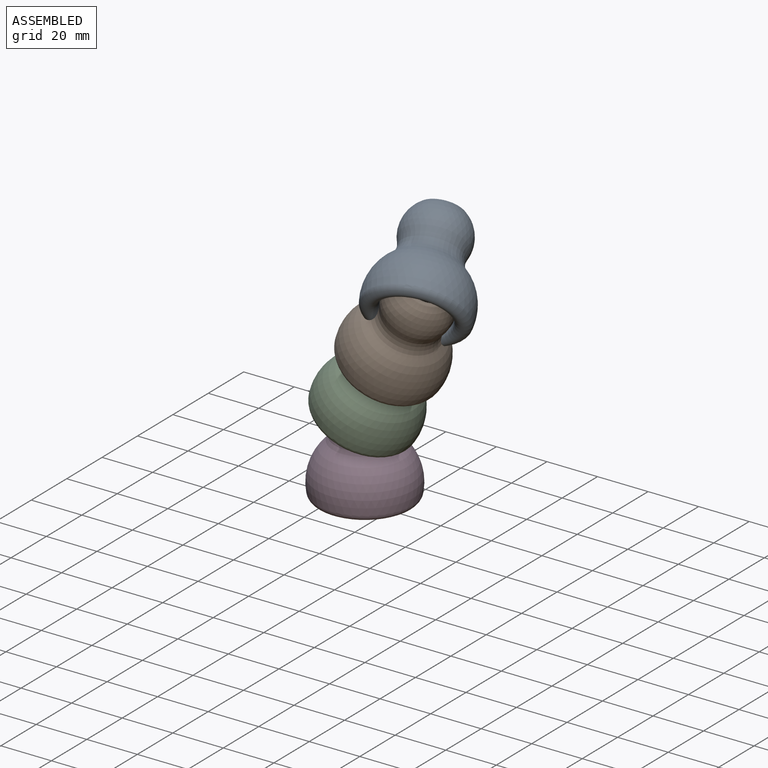
[diagram: assembled view]
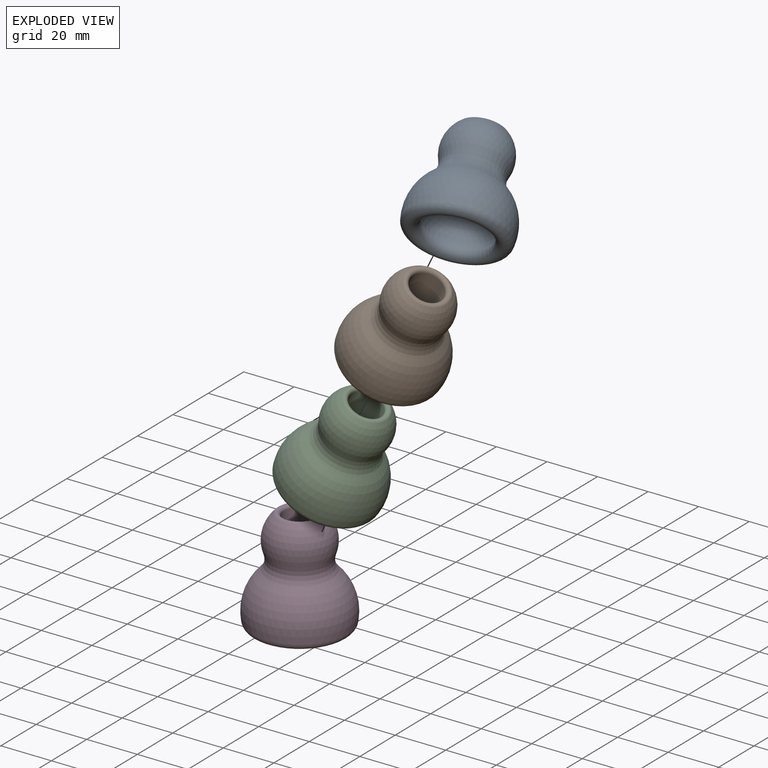
[diagram: exploded view]
GUIDED TOUR — MATED ASSEMBLY (Onshape document 17fda7f48e0e4979a549ba01, AutoMate assembly 17fda7f48e0e4979a549ba01_2a4e50c77bb997f17131bcc0_6e50e397506980c512785028_default)

This assembly has 4 components, labeled P0..P3 below (a component is one placed occurrence of a part; the same part can appear more than once), held together by 3 mates. A mate is a constraint between two components; its type names the relative motion it leaves free:
  BALL — leaves all rotation about the listed point free (a ball joint).
Axis/direction vectors are unit vectors and 'through' points are millimeter coordinates, both in the assembly's world frame.

MATES
  1. BALL "Ball 2": P2 <-> P1, direction (0.446, -0.058, 0.893) through (12.33, -1.61, 50.09) mm
  2. BALL "Ball 1": P3 <-> P2, direction (0.000, 0.000, 1.000) through (0.00, 0.00, 25.40) mm
  3. BALL "Ball 3": P1 <-> P0, direction (0.491, -0.141, 0.860) through (24.80, -5.21, 71.93) mm

ASSEMBLY ORDER
  1. P1 — the base component [order heuristic]
  2. P0 [order heuristic]
  3. P2 [order heuristic]
  4. P3 [order heuristic]
Order-tag legend:
  [order heuristic] — this assembly is geometrically interlocked (no collision-free removal order exists), so components are listed in mate-graph order; insertion feasibility is not verified.

Of the 4 components, 4 carry the full construction recipe — the FeatureScript program that regenerates the part's solid from scratch; the rest are supplied as boundary geometry only.
Each toured component is shown spotlighted twice — in the assembled view, then in the exploded view, where a leader line traces a displaced component back to its assembled socket (saturated green if recipe-attached, orange if geometry-only; every other component desaturated gray) — followed by its recipe or geometry summary and the mates that hold it.
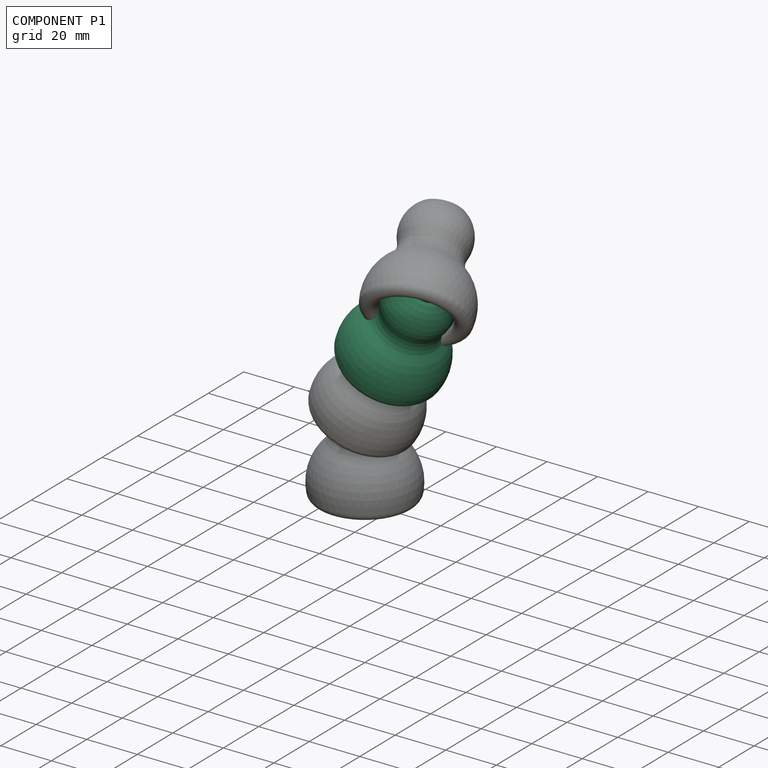
[diagram: component P1 — assembled]
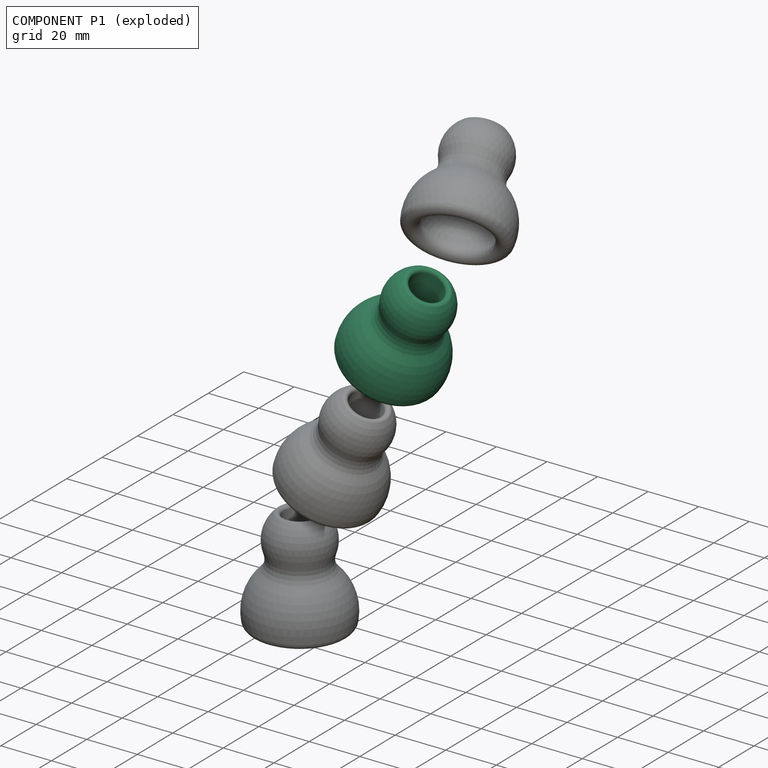
[diagram: component P1 — exploded]
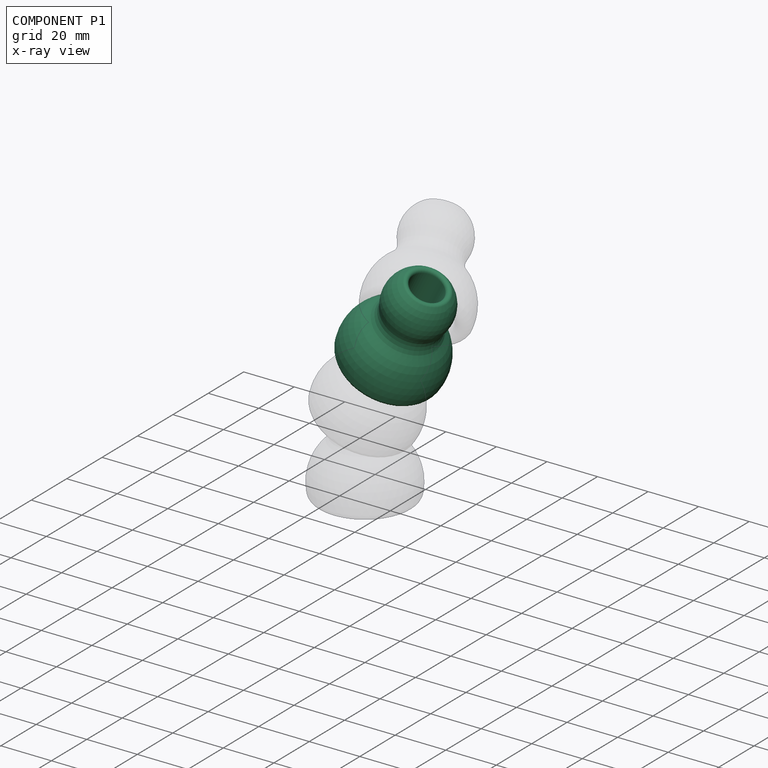
[diagram: component P1 — x-ray view]
COMPONENT P1 — same part as P0 (CADFS 00821202); its construction recipe is shown at P0.
Held by: BALL mate "Ball 2" to P2; BALL mate "Ball 3" to P0.
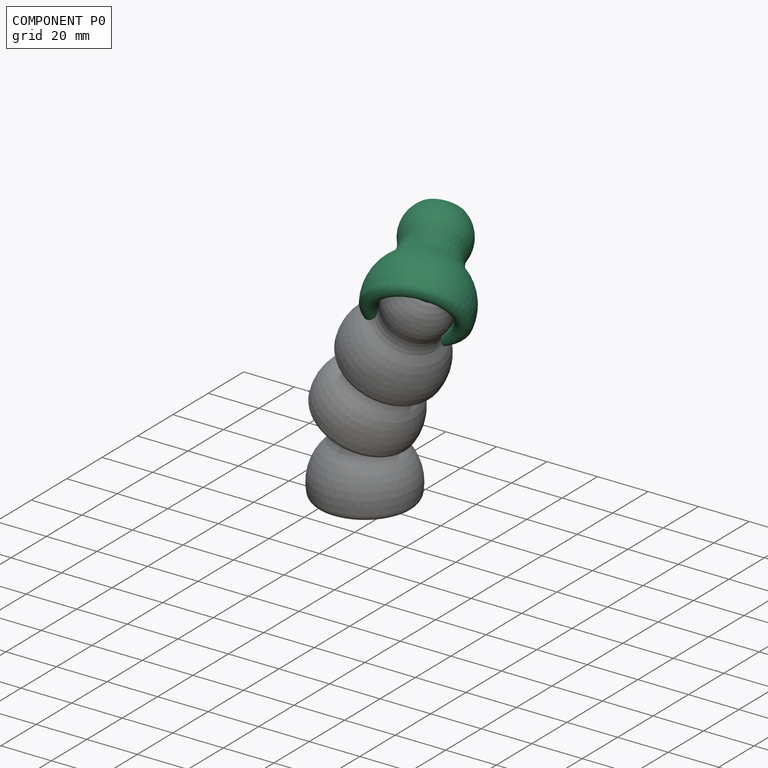
[diagram: component P0 — assembled]
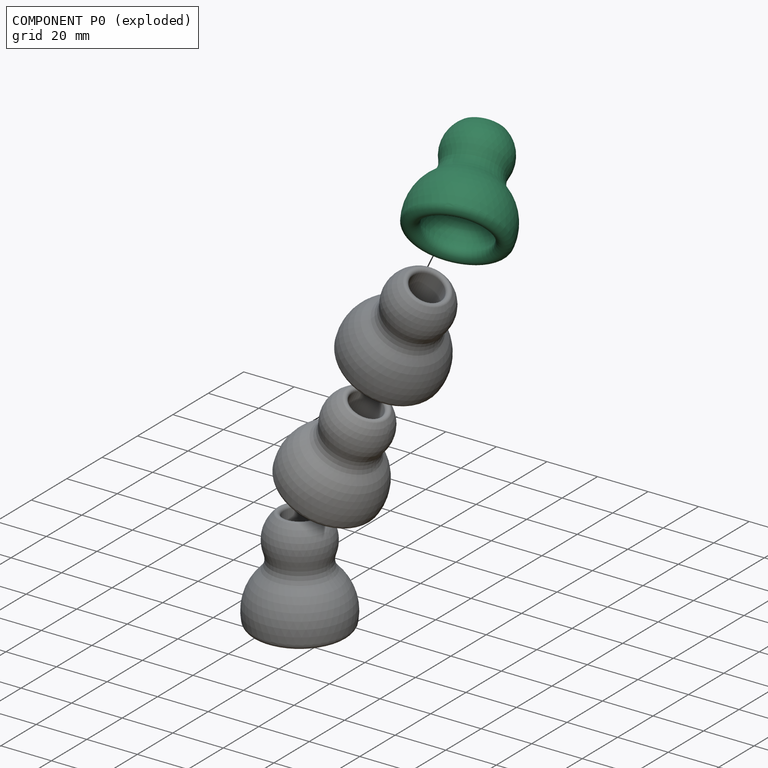
[diagram: component P0 — exploded]
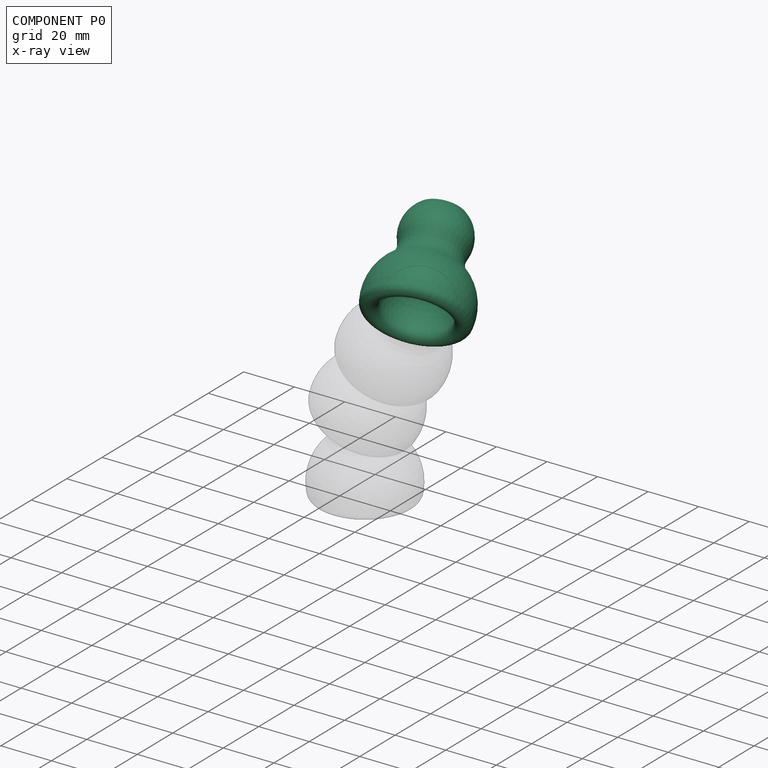
[diagram: component P0 — x-ray view]
COMPONENT P0 — recipe-attached (CADFS 00821202, mesh-verified: the recipe's output STEP matches this component's geometry to below the mesh-comparison resolution (tessellation chordal tolerance ~0.102 mm)).
Held by: BALL mate "Ball 3" to P1.
Construction recipe (FeatureScript — the CAD program that rebuilds this solid; sketch coordinates are in the units given by the * unit suffixes, e.g. mm):

FeatureScript 1511;
import(path : "onshape/std/geometry.fs", version : "1511.0");
import(path : "onshape/std/common.fs", version : "1511.0");
const mm = millimeter;
const VERTEX = EntityType.VERTEX;
const EDGE = EntityType.EDGE;
const FACE = EntityType.FACE;
const BODY = EntityType.BODY;
function v(x, y){return vector(x, y);}
function OD(order){return orderDisambiguation(order);}
function OSD(set){return originalSetDisambiguation(set);}
function TD(topology){return topologyDisambiguation(topology);}
function TDD(query){return trueDependencyDisambiguation(query);}
function sQuery(a, b, c) {return sketchEntityQuery(a, b, c);}

annotation { "Feature Type Name" : "Feature", "Feature Type Description" : "" }
export const myFeature = defineFeature(function(context is Context, id is Id, definition is map)
    precondition{}
    {
        {
            var Q0;
            Q0=qCreatedBy(makeId("Front.planeOp"),FACE);
            var sketch = newSketch(context, id + "F0", { "sketchPlane" : qUnion([Q0])});
            skLineSegment(sketch, "E0", {"start": v(0, 59.8) * mm, "end": v(0, -59.61) * mm, "construction": true});
            skArc(sketch, "E1", {"start": v(12.76, -2.25) * mm, "mid": v(9.92, 8.33) * mm, "end": v(0, 12.95) * mm});
            skArc(sketch, "E2", {"start": v(0, 12.7) * mm, "mid": v(12.7, 25.4) * mm, "end": v(0, 38.1) * mm});
            skArc(sketch, "E3", {"start": v(19.01, -3.35) * mm, "mid": v(14.79, 12.4) * mm, "end": v(0, 19.3) * mm});
            skLineSegment(sketch, "E4", {"start": v(0, 38.1) * mm, "end": v(0, 12.95) * mm});
            skArc(sketch, "E5", {"start": v(12.76, -2.25) * mm, "mid": v(15.33, -5.93) * mm, "end": v(19.01, -3.35) * mm});
            skArc(sketch, "E6", {"start": v(11.84, 20.8) * mm, "mid": v(11.56, 17.14) * mm, "end": v(13.36, 13.93) * mm});
            skLineSegment(sketch, "E7", {"start": v(0, 0) * mm, "end": v(15.88, -2.8) * mm, "construction": true});
            skSolve(sketch);
        }
        {
            var Q0;
            {var subQ0=sQuery(id+"F0.wireOp",EDGE,"E2");var subQ1=makeQuery(id+"F0.imprint","INTERSECT",VERTEX,{"derivedFrom":[subQ0,sQuery(id+"F0.wireOp",EDGE,"E6")]});Q0=makeQuery(id+"F0.imprint","IMPRINT",FACE,{"disambiguationData":[TD([[makeQuery(id+"F0.imprint","IMPRINT",EDGE,{"disambiguationData":[TD([[subQ1,1.0]])],"derivedFrom":subQ0}),1.0]])]});}
            var Q1;
            {var subQ6=sQuery(id+"F0.wireOp",EDGE,"E5");Q1=makeQuery(id+"F0.imprint","IMPRINT",FACE,{"disambiguationData":[TD([[makeQuery(id+"F0.imprint","IMPRINT",EDGE,{"derivedFrom":subQ6}),1.0]])]});}
            var Q2;
            {var subQ0=sQuery(id+"F0.wireOp",EDGE,"E4");var subQ1=sQuery(id+"F0.wireOp",EDGE,"E1");var subQ2=makeQuery(id+"F0.imprint","INTERSECT",VERTEX,{"derivedFrom":[subQ1,subQ0]});Q2=makeQuery(id+"F0.imprint","IMPRINT",FACE,{"disambiguationData":[TD([[makeQuery(id+"F0.imprint","IMPRINT",EDGE,{"disambiguationData":[TD([[subQ2,1.0]])],"derivedFrom":subQ1}),-1.0]])]});}
            var Q3;
            {var subQ0=sQuery(id+"F0.wireOp",EDGE,"E6");Q3=makeQuery(id+"F0.imprint","IMPRINT",FACE,{"disambiguationData":[TD([[makeQuery(id+"F0.imprint","IMPRINT",EDGE,{"derivedFrom":subQ0}),-1.0]])]});}
            var Q4;
            Q4=sQuery(id+"F0.wireOp",EDGE,"E0");
            revolve(context, id + "F1", {"surfaceOperationType" : NewSurfaceOperationType.NEW, "entities" : qUnion([Q0, Q1, Q2, Q3]), "axis" : qUnion([Q4]), "revolveType" : RevolveType.FULL});
        }
        {
            var Q0;
            Q0=qCreatedBy(makeId("Top.planeOp"),FACE);
            var sketch = newSketch(context, id + "F2", { "sketchPlane" : qUnion([Q0])});
            skCircle(sketch, "E8", {"center": v(0, 0) * mm, "radius": 6.35 * mm});
            skSolve(sketch);
        }
        {
            var Q0;
            Q0=makeQuery(id+"F2.imprint","IMPRINT",FACE,{"disambiguationData":[TD([[makeQuery(id+"F2.imprint","IMPRINT",EDGE,{"derivedFrom":sQuery(id+"F2.wireOp",EDGE,"E8")}),1.0]])]});
            extrude(context, id + "F3", {"entities" : qUnion([Q0]), "operationType" : NewBodyOperationType.REMOVE, "endBound" : BoundingType.THROUGH_ALL, "depth" : 25.4 * mm, "offsetDistance" : 25.4 * mm});
        }
        {
            var Q0;
            Q0=makeQuery(id+"F3.boolean.opBoolean","INTERSECT",EDGE,{"derivedFrom":[makeQuery(id+"F1.opRevolve","SWEPT_FACE",FACE,{"disambiguationData":[OSD([sQuery(id+"F0.wireOp",EDGE,"E2")])]}),makeQuery(id+"F3.opExtrude","SWEPT_FACE",FACE,{"disambiguationData":[OSD([sQuery(id+"F2.wireOp",EDGE,"E8")])]})]});
            var Q1;
            Q1=makeQuery(id+"F3.boolean.opBoolean","INTERSECT",EDGE,{"derivedFrom":[makeQuery(id+"F1.opRevolve","SWEPT_FACE",FACE,{"disambiguationData":[OSD([sQuery(id+"F0.wireOp",EDGE,"E1")])]}),makeQuery(id+"F3.opExtrude","SWEPT_FACE",FACE,{"disambiguationData":[OSD([sQuery(id+"F2.wireOp",EDGE,"E8")])]})]});
            fillet(context, id + "F4", {"entities" : qUnion([Q0, Q1]), "radius" : 1.27 * mm, "tangentPropagation" : true, "allowEdgeOverflow" : false});
        }
    });
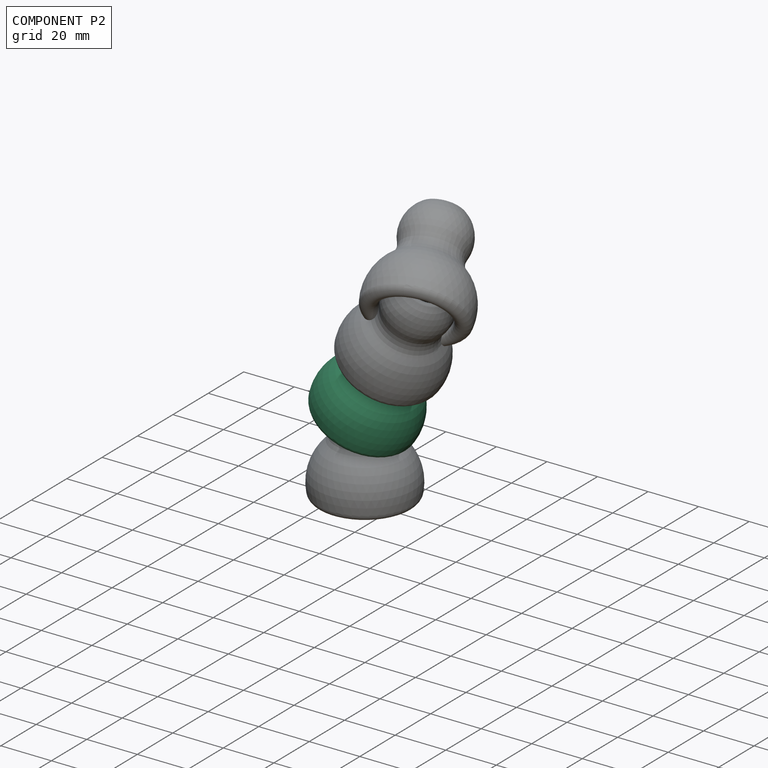
[diagram: component P2 — assembled]
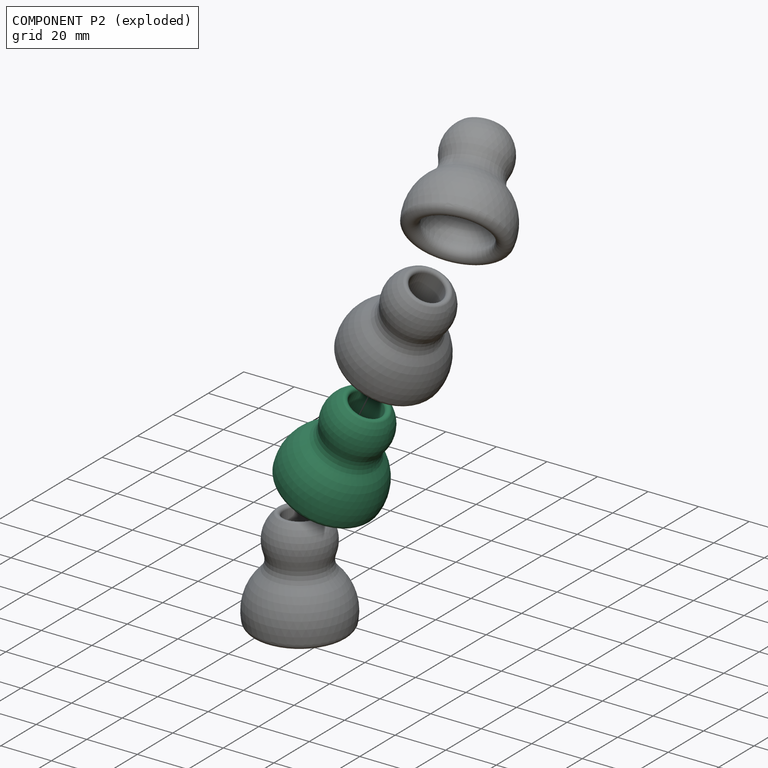
[diagram: component P2 — exploded]
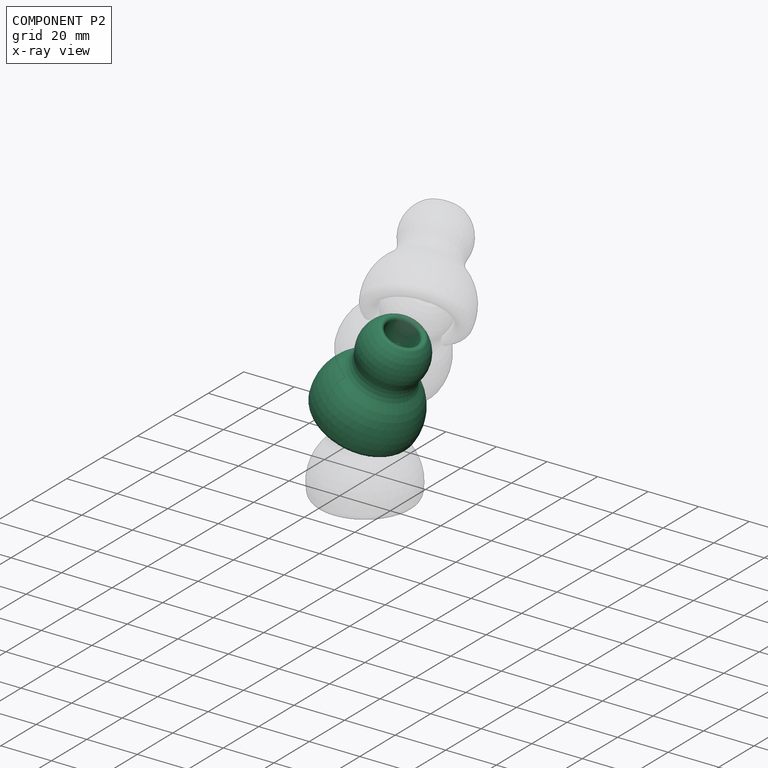
[diagram: component P2 — x-ray view]
COMPONENT P2 — same part as P0 (CADFS 00821202); its construction recipe is shown at P0.
Held by: BALL mate "Ball 2" to P1; BALL mate "Ball 1" to P3.
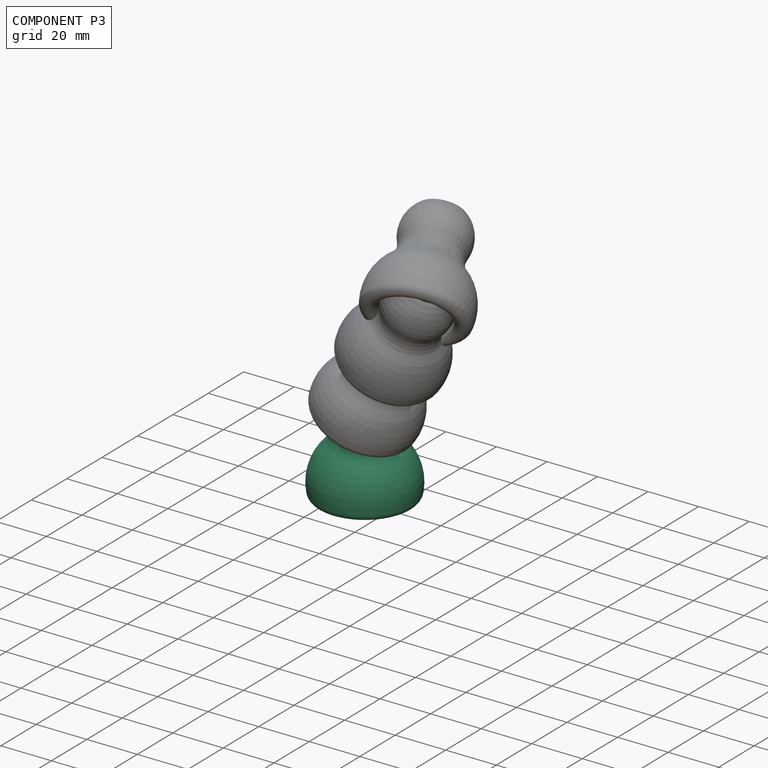
[diagram: component P3 — assembled]
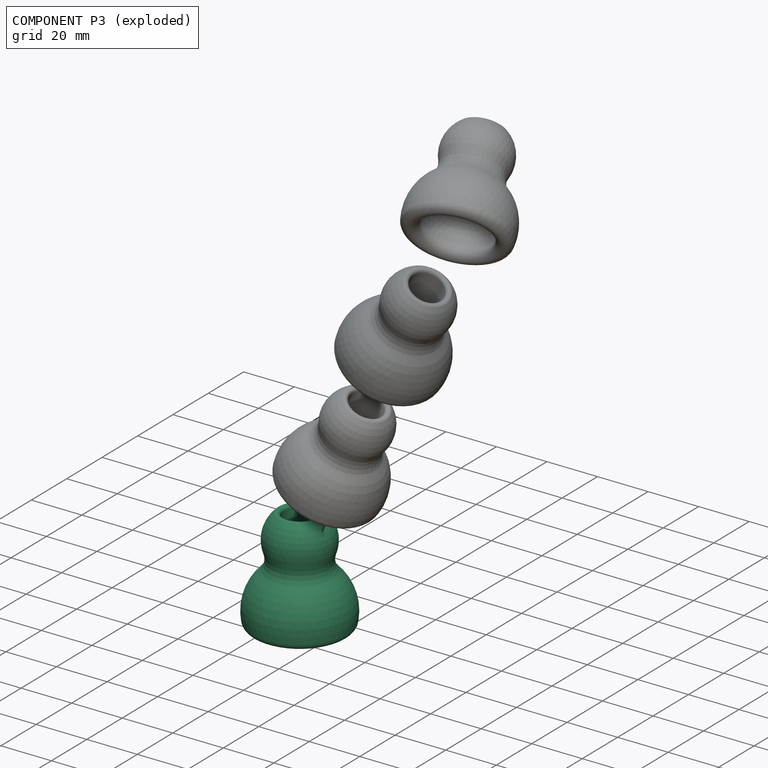
[diagram: component P3 — exploded]
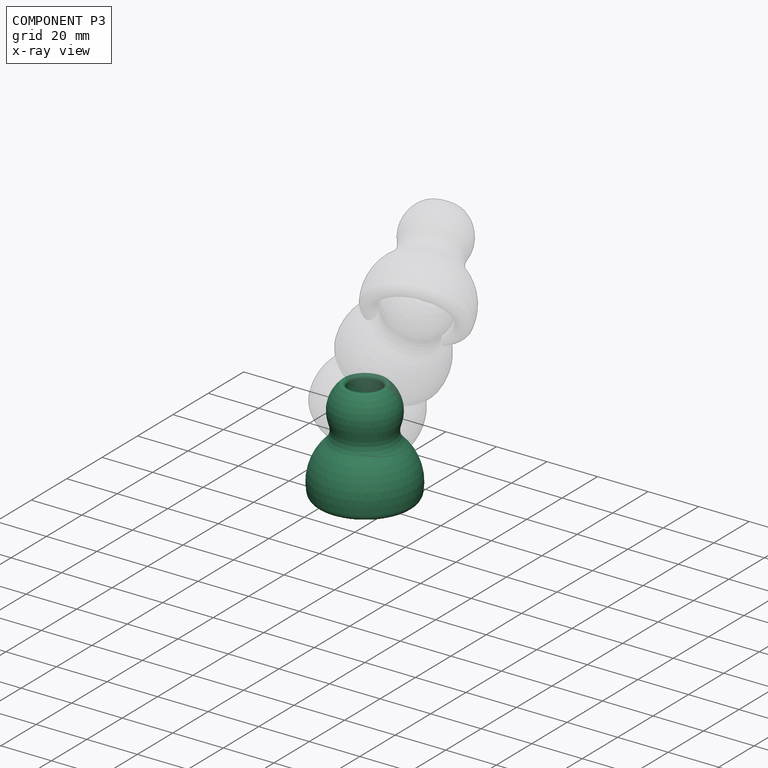
[diagram: component P3 — x-ray view]
COMPONENT P3 — same part as P0 (CADFS 00821202); its construction recipe is shown at P0.
Held by: BALL mate "Ball 1" to P2.
PROVENANCE & LICENSES
Assembly (occurrences, transforms, mates, per-part STEP geometry): AutoMate dataset, Zenodo record 7776208, CC0.
Construction recipes: CADFS (HuggingFace VladPyatov/CADFS, CC-BY-4.0, layered over the ABC dataset), FeatureScript reconstruction programs keyed by ABC model id.
Join: ABC meta listings map ABC model id -> Onshape documentId; within a shared document, parts are matched by geometric signature (bounding-box dims + volume at 0.1% relative tolerance, exact B-rep face/solid counts).
Verification: 4 of this assembly's 4 components carry a recipe attachment, and every attachment is mesh-verified: the CADFS STEP and the AutoMate member STEP were compared as meshes in their shared local frame (symmetric sampled-point-to-mesh distance); worst across the 4 attachments: below the mesh-comparison resolution (tessellation chordal tolerance ~0.102 mm) on a 68 mm part.
Renders: orthographic iso camera (az 35 / el 25); the floor grid conveys scale (grid pitch printed in each image; no ruler). In the exploded view each component is displaced by its stored offset vector: the offsets alone carry the explosion direction (mate normal/axis signs are not orientation cues and do not encode it), and separation distances are assigned per mate-chain, not proportionally to assembly-order depth.
